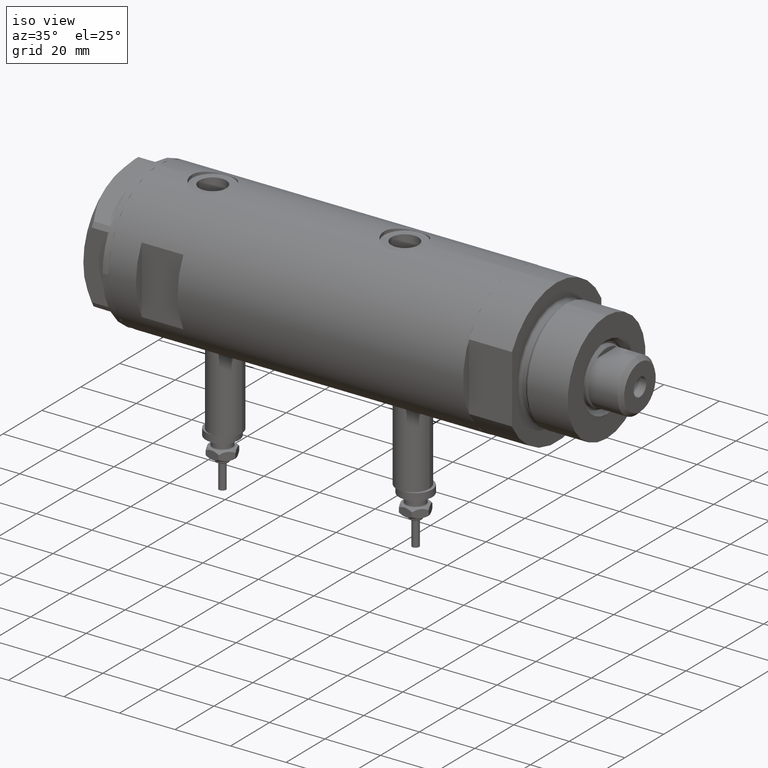
[diagram: clean part render]
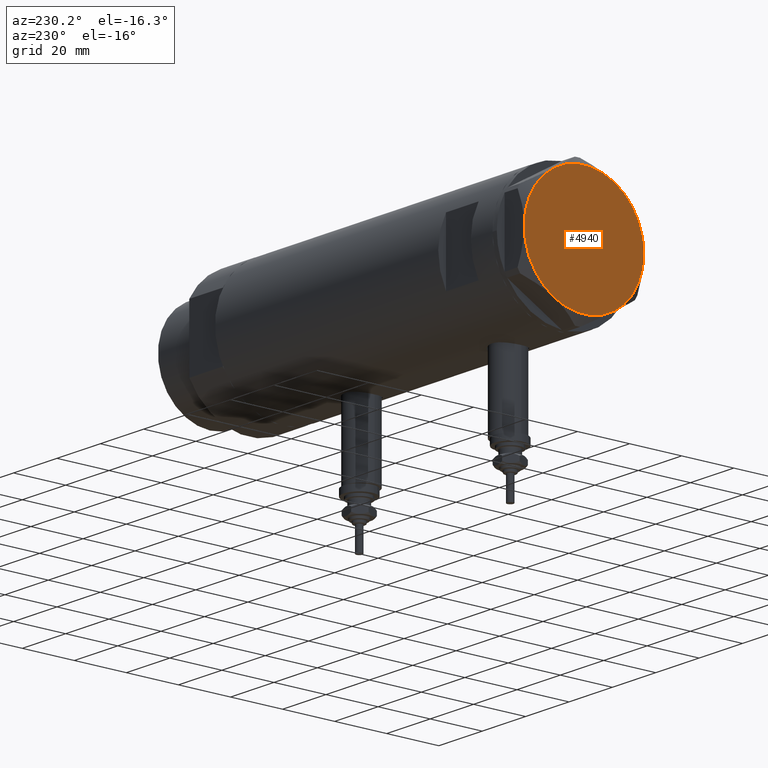
[diagram: tour spotlight — one face highlighted and labeled with its STEP entity id]
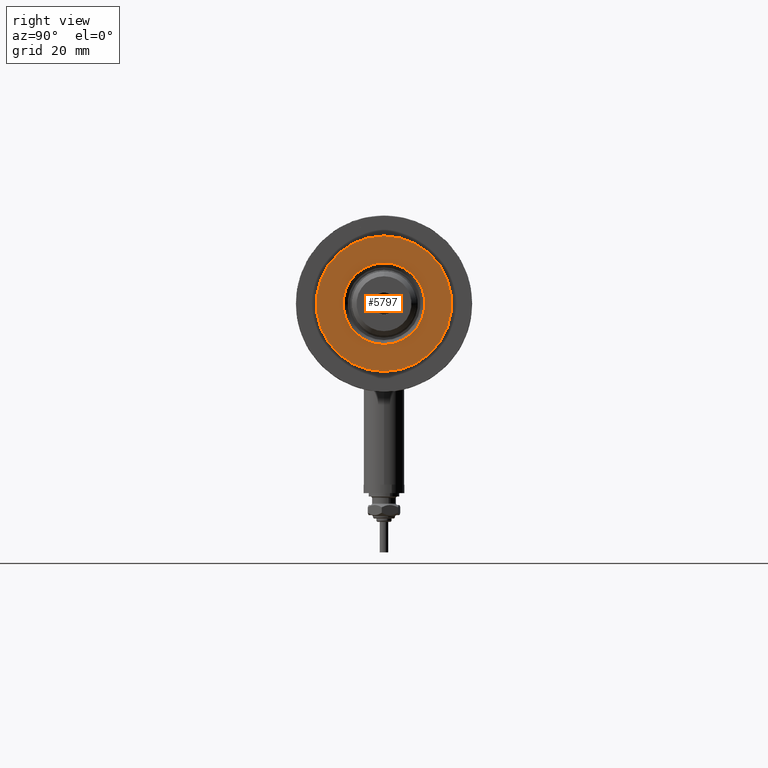
[diagram: tour spotlight — one face highlighted and labeled with its STEP entity id]
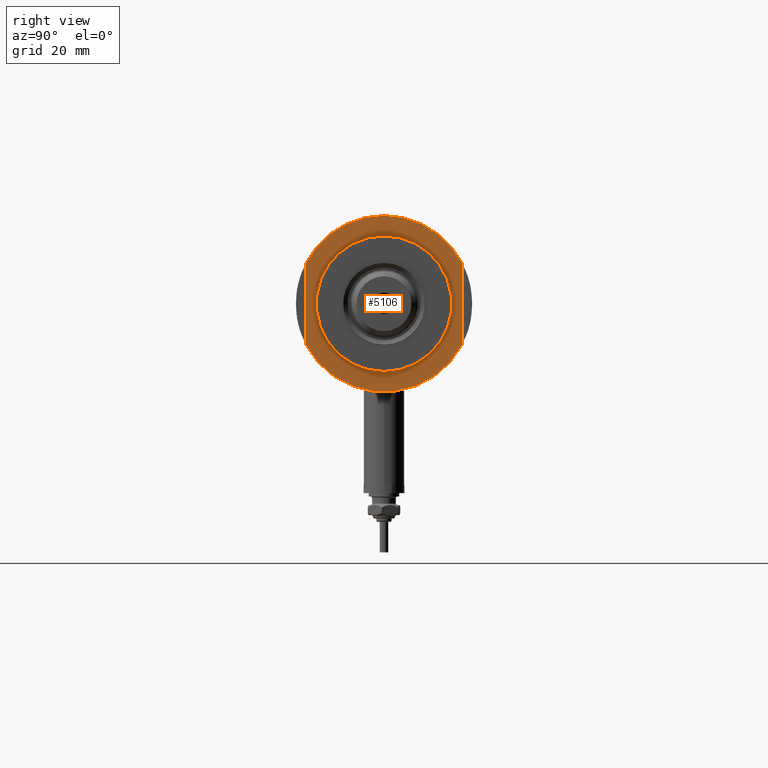
[diagram: tour spotlight — one face highlighted and labeled with its STEP entity id]
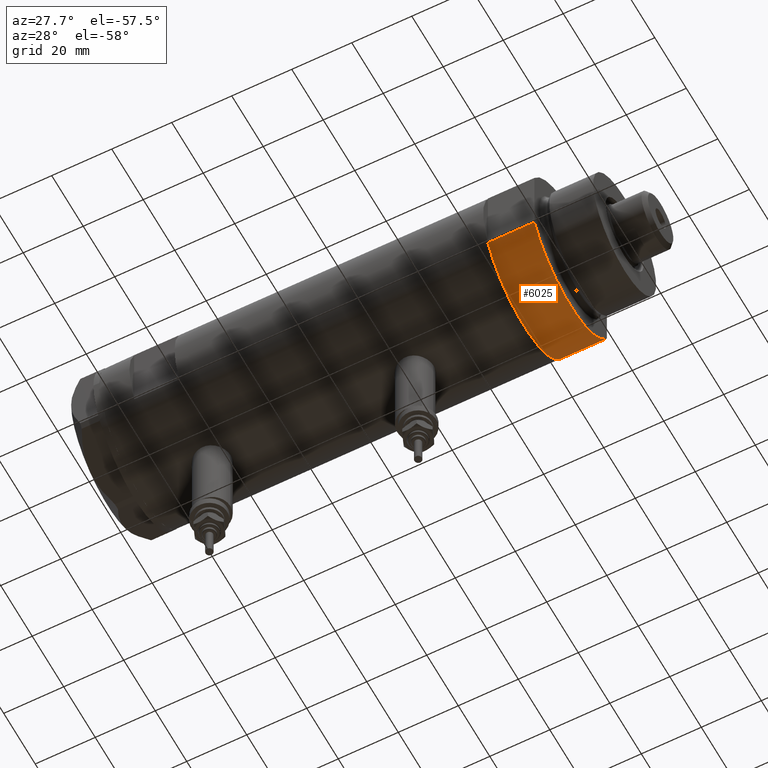
[diagram: tour spotlight — one face highlighted and labeled with its STEP entity id]
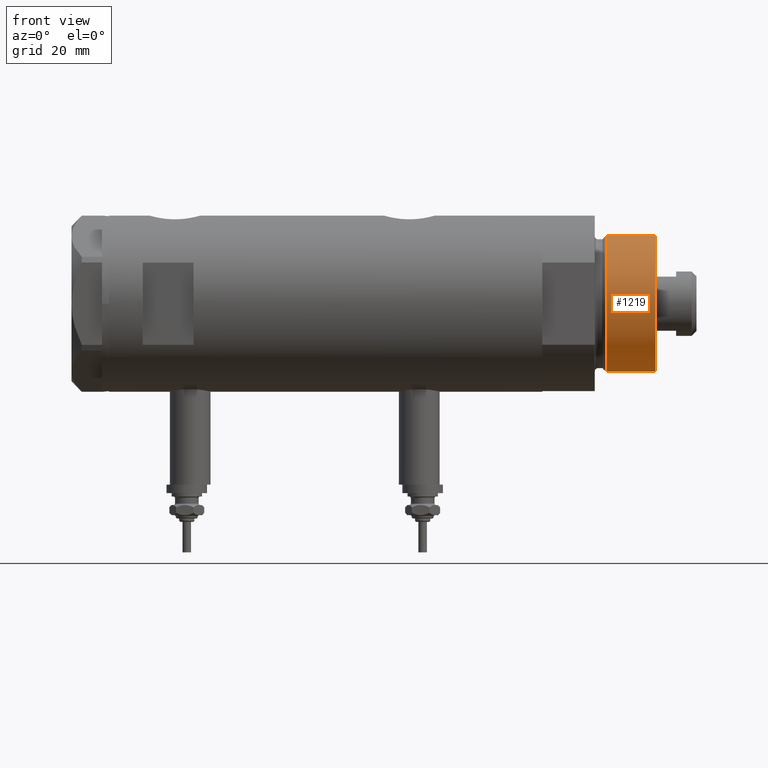
[diagram: tour spotlight — one face highlighted and labeled with its STEP entity id]
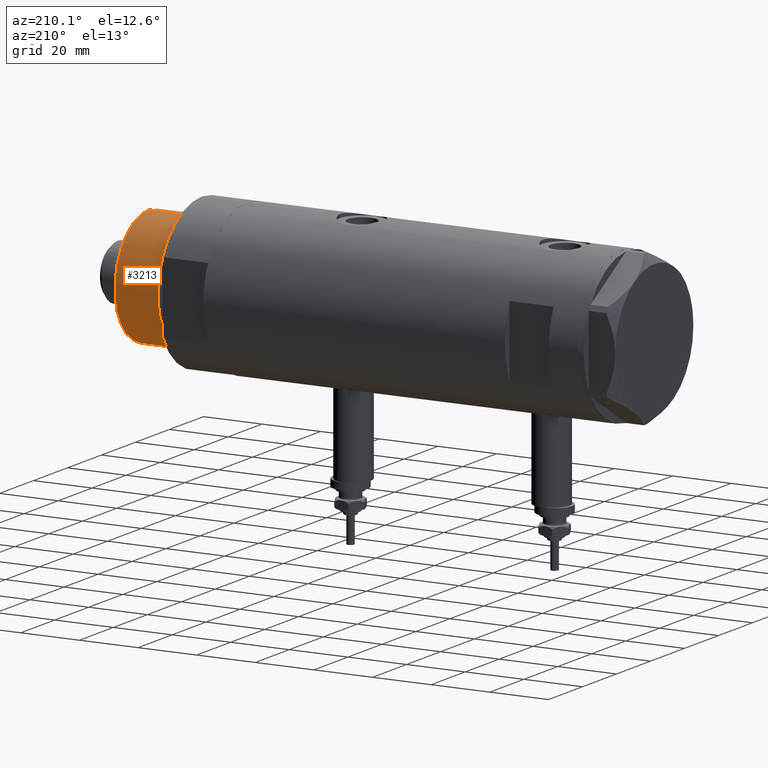
[diagram: tour spotlight — one face highlighted and labeled with its STEP entity id]
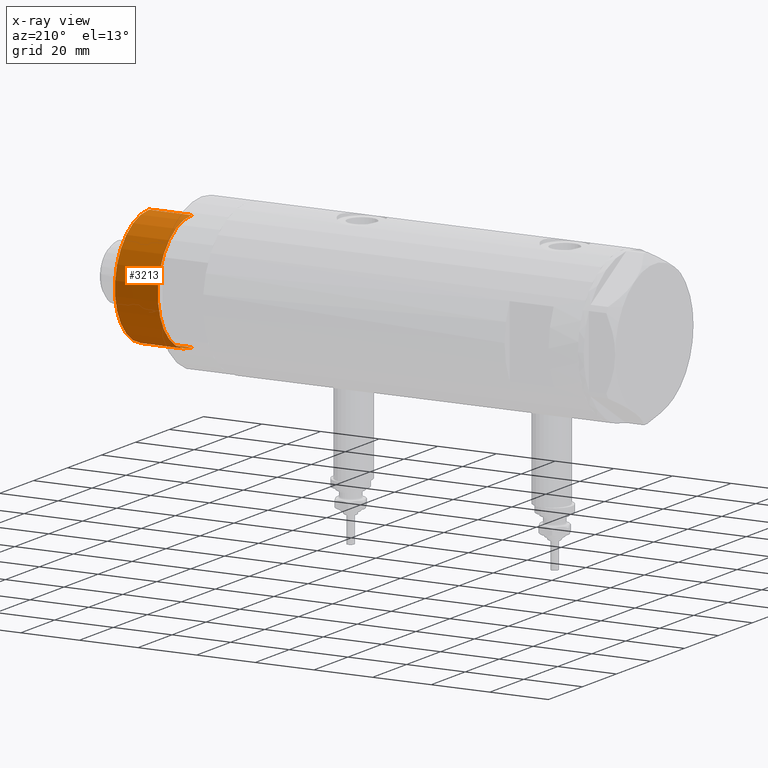
[diagram: x-ray of the same camera — body ghosted, this tour face saturated]
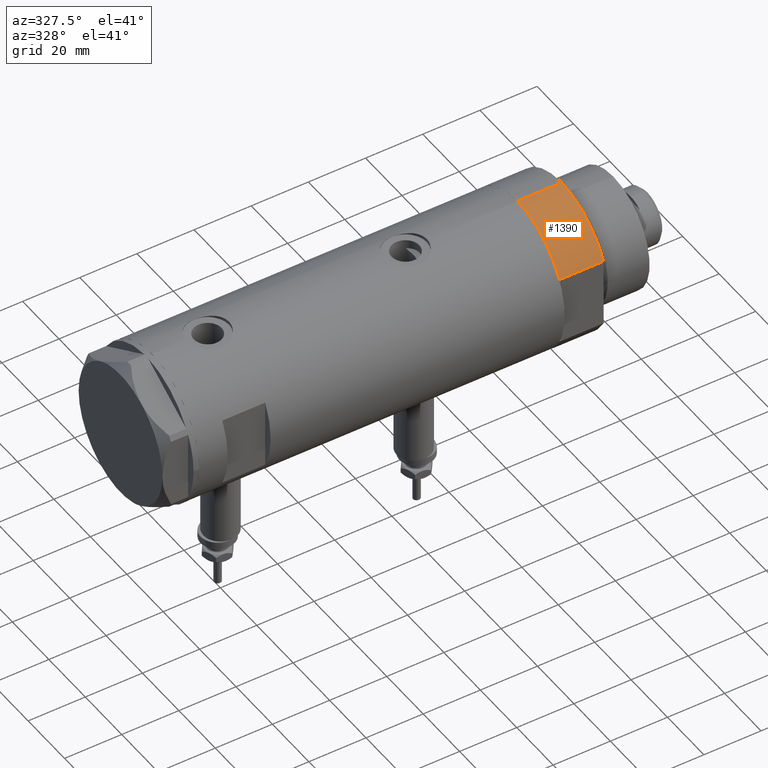
[diagram: tour spotlight — one face highlighted and labeled with its STEP entity id]
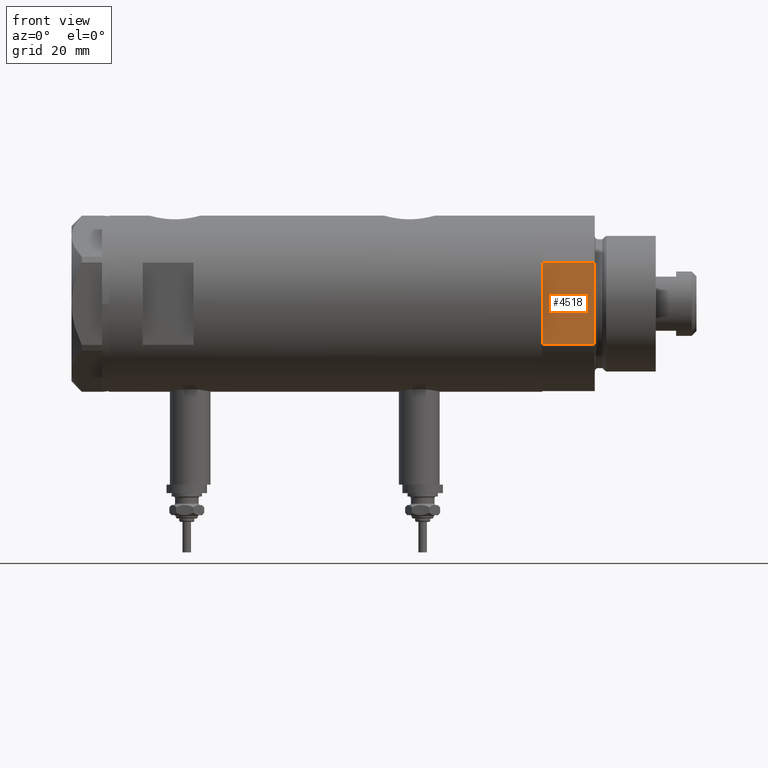
[diagram: tour spotlight — one face highlighted and labeled with its STEP entity id]
A machine part: a face-by-face anatomy tour. The part has 226 B-rep faces; the first image is the clean iso view, then the 8 largest visible faces are spotlighted one at a time (largest first), each with its STEP entity span.

Face 1 — auxiliary view, entity #4940. In plain terms, the highlighted planar face has unit normal (-1, -0, 0).
Definition (entity closure, byte-faithful):
#221 = AXIS2_PLACEMENT_3D ( 'NONE', #2735, #2113, #1118 ) ;
#471 = EDGE_CURVE ( 'NONE', #967, #3510, #5889, .T. ) ;
#510 = DIRECTION ( 'NONE',  ( 1.000000000000000000, 0.000000000000000000, -0.000000000000000000 ) ) ;
#590 = VERTEX_POINT ( 'NONE', #1179 ) ;
#937 = ORIENTED_EDGE ( 'NONE', *, *, #5559, .T. ) ;
#946 = FACE_OUTER_BOUND ( 'NONE', #2515, .T. ) ;
#967 = VERTEX_POINT ( 'NONE', #2208 ) ;
#1002 = VERTEX_POINT ( 'NONE', #3636 ) ;
#1038 = CARTESIAN_POINT ( 'NONE',  ( 0.000000000000000000, 0.000000000000000000, 9.000000000000000000 ) ) ;
#1118 = DIRECTION ( 'NONE',  ( 1.000000000000000000, 0.000000000000000000, 0.000000000000000000 ) ) ;
#1179 = CARTESIAN_POINT ( 'NONE',  ( 22.99999999999995026, 2.373657066004705010E-13, 9.000000000000000000 ) ) ;
#1199 = EDGE_CURVE ( 'NONE', #5758, #967, #4924, .T. ) ;
#1228 = AXIS2_PLACEMENT_3D ( 'NONE', #3427, #5379, #2960 ) ;
#1651 = EDGE_CURVE ( 'NONE', #1002, #5758, #5932, .T. ) ;
#1935 = DIRECTION ( 'NONE',  ( 0.000000000000000000, 0.000000000000000000, 1.000000000000000000 ) ) ;
#2097 = CARTESIAN_POINT ( 'NONE',  ( 0.000000000000000000, 0.000000000000000000, 9.000000000000000000 ) ) ;
#2113 = DIRECTION ( 'NONE',  ( 0.000000000000000000, 0.000000000000000000, 1.000000000000000000 ) ) ;
#2183 = AXIS2_PLACEMENT_3D ( 'NONE', #2097, #3501, #2616 ) ;
#2208 = CARTESIAN_POINT ( 'NONE',  ( -11.49999999999990585, -19.91858428704219364, 9.000000000000000000 ) ) ;
#2460 = DIRECTION ( 'NONE',  ( 0.000000000000000000, 0.000000000000000000, 1.000000000000000000 ) ) ;
#2512 = AXIS2_PLACEMENT_3D ( 'NONE', #5894, #3517, #4895 ) ;
#2515 = EDGE_LOOP ( 'NONE', ( #937, #6269, #5911, #3975, #5761, #6015 ) ) ;
#2593 = VERTEX_POINT ( 'NONE', #2851 ) ;
#2616 = DIRECTION ( 'NONE',  ( 1.000000000000000000, 0.000000000000000000, 0.000000000000000000 ) ) ;
#2635 = CARTESIAN_POINT ( 'NONE',  ( 11.50000000000018296, -19.91858428704203732, 9.000000000000000000 ) ) ;
#2735 = CARTESIAN_POINT ( 'NONE',  ( 0.000000000000000000, 0.000000000000000000, 9.000000000000000000 ) ) ;
#2851 = CARTESIAN_POINT ( 'NONE',  ( 11.49999999999990408, 19.91858428704219364, 9.000000000000000000 ) ) ;
#2960 = DIRECTION ( 'NONE',  ( 1.000000000000000000, 0.000000000000000000, 0.000000000000000000 ) ) ;
#2980 = EDGE_CURVE ( 'NONE', #2593, #1002, #4572, .T. ) ;
#3030 = CIRCLE ( 'NONE', #2512, 23.00000000000004619 ) ;
#3035 = DIRECTION ( 'NONE',  ( 0.000000000000000000, 0.000000000000000000, 1.000000000000000000 ) ) ;
#3427 = CARTESIAN_POINT ( 'NONE',  ( 0.000000000000000000, 0.000000000000000000, 9.000000000000000000 ) ) ;
#3436 = PLANE ( 'NONE',  #3937 ) ;
#3501 = DIRECTION ( 'NONE',  ( 0.000000000000000000, 0.000000000000000000, 1.000000000000000000 ) ) ;
#3510 = VERTEX_POINT ( 'NONE', #2635 ) ;
#3517 = DIRECTION ( 'NONE',  ( 0.000000000000000000, 0.000000000000000000, 1.000000000000000000 ) ) ;
#3636 = CARTESIAN_POINT ( 'NONE',  ( -11.50000000000004441, 19.91858428704211548, 9.000000000000000000 ) ) ;
#3937 = AXIS2_PLACEMENT_3D ( 'NONE', #1038, #1935, #510 ) ;
#3975 = ORIENTED_EDGE ( 'NONE', *, *, #1651, .T. ) ;
#4375 = EDGE_CURVE ( 'NONE', #590, #2593, #3030, .T. ) ;
#4445 = CARTESIAN_POINT ( 'NONE',  ( 0.000000000000000000, 0.000000000000000000, 9.000000000000000000 ) ) ;
#4572 = CIRCLE ( 'NONE', #4673, 23.00000000000004619 ) ;
#4673 = AXIS2_PLACEMENT_3D ( 'NONE', #5816, #2460, #4906 ) ;
#4895 = DIRECTION ( 'NONE',  ( 1.000000000000000000, 0.000000000000000000, 0.000000000000000000 ) ) ;
#4906 = DIRECTION ( 'NONE',  ( 1.000000000000000000, 0.000000000000000000, 0.000000000000000000 ) ) ;
#4924 = CIRCLE ( 'NONE', #2183, 23.00000000000004619 ) ;
#4940 = ADVANCED_FACE ( 'NONE', ( #946 ), #3436, .T. ) ;
#4983 = DIRECTION ( 'NONE',  ( 1.000000000000000000, 0.000000000000000000, 0.000000000000000000 ) ) ;
#5253 = CARTESIAN_POINT ( 'NONE',  ( -23.00000000000004619, -8.112498833180673323E-14, 9.000000000000000000 ) ) ;
#5275 = AXIS2_PLACEMENT_3D ( 'NONE', #4445, #3035, #4983 ) ;
#5379 = DIRECTION ( 'NONE',  ( 0.000000000000000000, 0.000000000000000000, 1.000000000000000000 ) ) ;
#5413 = CIRCLE ( 'NONE', #1228, 23.00000000000004619 ) ;
#5559 = EDGE_CURVE ( 'NONE', #3510, #590, #5413, .T. ) ;
#5758 = VERTEX_POINT ( 'NONE', #5253 ) ;
#5761 = ORIENTED_EDGE ( 'NONE', *, *, #1199, .T. ) ;
#5816 = CARTESIAN_POINT ( 'NONE',  ( 0.000000000000000000, 0.000000000000000000, 9.000000000000000000 ) ) ;
#5889 = CIRCLE ( 'NONE', #5275, 23.00000000000004619 ) ;
#5894 = CARTESIAN_POINT ( 'NONE',  ( 0.000000000000000000, 0.000000000000000000, 9.000000000000000000 ) ) ;
#5911 = ORIENTED_EDGE ( 'NONE', *, *, #2980, .T. ) ;
#5932 = CIRCLE ( 'NONE', #221, 23.00000000000004619 ) ;
#6015 = ORIENTED_EDGE ( 'NONE', *, *, #471, .T. ) ;
#6269 = ORIENTED_EDGE ( 'NONE', *, *, #4375, .T. ) ;

Face 2 — right view, entity #5797. In plain terms, the highlighted planar face has unit normal (1, 0, -0).
Definition (entity closure, byte-faithful):
#43 = DIRECTION ( 'NONE',  ( 1.000000000000000000, 0.000000000000000000, 0.000000000000000000 ) ) ;
#47 = VERTEX_POINT ( 'NONE', #3275 ) ;
#254 = CARTESIAN_POINT ( 'NONE',  ( 0.000000000000000000, 0.000000000000000000, 33.50000000000000000 ) ) ;
#460 = PLANE ( 'NONE',  #4297 ) ;
#508 = DIRECTION ( 'NONE',  ( 1.000000000000000000, 0.000000000000000000, 0.000000000000000000 ) ) ;
#524 = DIRECTION ( 'NONE',  ( 0.000000000000000000, 0.000000000000000000, 1.000000000000000000 ) ) ;
#699 = AXIS2_PLACEMENT_3D ( 'NONE', #5864, #524, #43 ) ;
#783 = ORIENTED_EDGE ( 'NONE', *, *, #2949, .T. ) ;
#1202 = VERTEX_POINT ( 'NONE', #3986 ) ;
#1950 = CARTESIAN_POINT ( 'NONE',  ( 0.000000000000000000, 0.000000000000000000, 33.50000000000000000 ) ) ;
#2060 = DIRECTION ( 'NONE',  ( -0.000000000000000000, -0.000000000000000000, -1.000000000000000000 ) ) ;
#2408 = VERTEX_POINT ( 'NONE', #4227 ) ;
#2856 = CARTESIAN_POINT ( 'NONE',  ( 12.05000000000000426, 0.000000000000000000, 33.50000000000000000 ) ) ;
#2949 = EDGE_CURVE ( 'NONE', #2408, #4614, #4467, .T. ) ;
#2964 = CARTESIAN_POINT ( 'NONE',  ( 0.000000000000000000, 0.000000000000000000, 33.50000000000000000 ) ) ;
#3085 = DIRECTION ( 'NONE',  ( 1.000000000000000000, 0.000000000000000000, 0.000000000000000000 ) ) ;
#3275 = CARTESIAN_POINT ( 'NONE',  ( -19.99999999999999645, 0.000000000000000000, 33.50000000000000000 ) ) ;
#3362 = EDGE_CURVE ( 'NONE', #47, #1202, #3450, .T. ) ;
#3364 = DIRECTION ( 'NONE',  ( 0.000000000000000000, 0.000000000000000000, 1.000000000000000000 ) ) ;
#3404 = DIRECTION ( 'NONE',  ( -0.000000000000000000, -0.000000000000000000, -1.000000000000000000 ) ) ;
#3421 = DIRECTION ( 'NONE',  ( 1.000000000000000000, 0.000000000000000000, -0.000000000000000000 ) ) ;
#3424 = AXIS2_PLACEMENT_3D ( 'NONE', #254, #2060, #3085 ) ;
#3450 = CIRCLE ( 'NONE', #699, 19.99999999999999645 ) ;
#3539 = CIRCLE ( 'NONE', #3643, 19.99999999999999645 ) ;
#3643 = AXIS2_PLACEMENT_3D ( 'NONE', #4361, #3364, #4836 ) ;
#3805 = ORIENTED_EDGE ( 'NONE', *, *, #4270, .T. ) ;
#3830 = ORIENTED_EDGE ( 'NONE', *, *, #5188, .T. ) ;
#3986 = CARTESIAN_POINT ( 'NONE',  ( 19.99999999999999645, 2.449293598294706119E-15, 33.50000000000000000 ) ) ;
#4227 = CARTESIAN_POINT ( 'NONE',  ( -12.05000000000000426, 1.475699392972560823E-15, 33.50000000000000000 ) ) ;
#4270 = EDGE_CURVE ( 'NONE', #1202, #47, #3539, .T. ) ;
#4297 = AXIS2_PLACEMENT_3D ( 'NONE', #1950, #6279, #3421 ) ;
#4361 = CARTESIAN_POINT ( 'NONE',  ( 0.000000000000000000, 0.000000000000000000, 33.50000000000000000 ) ) ;
#4467 = CIRCLE ( 'NONE', #5708, 12.05000000000000426 ) ;
#4527 = EDGE_LOOP ( 'NONE', ( #6323, #3805 ) ) ;
#4614 = VERTEX_POINT ( 'NONE', #2856 ) ;
#4836 = DIRECTION ( 'NONE',  ( 1.000000000000000000, 0.000000000000000000, 0.000000000000000000 ) ) ;
#5188 = EDGE_CURVE ( 'NONE', #4614, #2408, #6196, .T. ) ;
#5371 = FACE_OUTER_BOUND ( 'NONE', #4527, .T. ) ;
#5708 = AXIS2_PLACEMENT_3D ( 'NONE', #2964, #3404, #508 ) ;
#5797 = ADVANCED_FACE ( 'NONE', ( #5832, #5371 ), #460, .T. ) ;
#5832 = FACE_BOUND ( 'NONE', #6237, .T. ) ;
#5864 = CARTESIAN_POINT ( 'NONE',  ( 0.000000000000000000, 0.000000000000000000, 33.50000000000000000 ) ) ;
#6196 = CIRCLE ( 'NONE', #3424, 12.05000000000000426 ) ;
#6237 = EDGE_LOOP ( 'NONE', ( #3830, #783 ) ) ;
#6279 = DIRECTION ( 'NONE',  ( 0.000000000000000000, 0.000000000000000000, 1.000000000000000000 ) ) ;
#6323 = ORIENTED_EDGE ( 'NONE', *, *, #3362, .T. ) ;

Face 3 — right view, entity #5106. In plain terms, the highlighted planar face has unit normal (1, 0, -0).
Definition (entity closure, byte-faithful):
#4 = CARTESIAN_POINT ( 'NONE',  ( -12.12435565298215145, 23.00000000000000355, 15.50000000000000000 ) ) ;
#89 = DIRECTION ( 'NONE',  ( 0.000000000000000000, 0.000000000000000000, 1.000000000000000000 ) ) ;
#110 = CARTESIAN_POINT ( 'NONE',  ( 0.000000000000000000, 0.000000000000000000, 15.50000000000000000 ) ) ;
#122 = ORIENTED_EDGE ( 'NONE', *, *, #1052, .F. ) ;
#571 = CARTESIAN_POINT ( 'NONE',  ( 20.00000000000000000, 0.000000000000000000, 15.50000000000000000 ) ) ;
#575 = ORIENTED_EDGE ( 'NONE', *, *, #2459, .T. ) ;
#714 = CARTESIAN_POINT ( 'NONE',  ( 12.12435565298214790, 23.00000000000000355, 15.50000000000000000 ) ) ;
#732 = LINE ( 'NONE', #4221, #6036 ) ;
#755 = CIRCLE ( 'NONE', #2997, 26.00000000000000355 ) ;
#861 = VERTEX_POINT ( 'NONE', #571 ) ;
#1052 = EDGE_CURVE ( 'NONE', #1661, #3700, #732, .T. ) ;
#1115 = EDGE_CURVE ( 'NONE', #1661, #2418, #755, .T. ) ;
#1121 = CARTESIAN_POINT ( 'NONE',  ( -12.12435565298214613, 23.00000000000000355, 15.50000000000000000 ) ) ;
#1279 = ORIENTED_EDGE ( 'NONE', *, *, #4095, .T. ) ;
#1442 = CARTESIAN_POINT ( 'NONE',  ( 0.000000000000000000, 0.000000000000000000, 15.50000000000000000 ) ) ;
#1483 = VERTEX_POINT ( 'NONE', #3185 ) ;
#1610 = CIRCLE ( 'NONE', #3045, 26.00000000000000355 ) ;
#1661 = VERTEX_POINT ( 'NONE', #5153 ) ;
#1700 = DIRECTION ( 'NONE',  ( -0.000000000000000000, -0.000000000000000000, -1.000000000000000000 ) ) ;
#1849 = ORIENTED_EDGE ( 'NONE', *, *, #3461, .T. ) ;
#1946 = DIRECTION ( 'NONE',  ( 1.000000000000000000, 0.000000000000000000, 0.000000000000000000 ) ) ;
#1987 = AXIS2_PLACEMENT_3D ( 'NONE', #3469, #89, #3405 ) ;
#1993 = EDGE_CURVE ( 'NONE', #3503, #2418, #4475, .T. ) ;
#2015 = AXIS2_PLACEMENT_3D ( 'NONE', #5571, #1700, #2221 ) ;
#2048 = DIRECTION ( 'NONE',  ( -0.000000000000000000, -0.000000000000000000, -1.000000000000000000 ) ) ;
#2126 = ORIENTED_EDGE ( 'NONE', *, *, #1115, .T. ) ;
#2221 = DIRECTION ( 'NONE',  ( 1.000000000000000000, 0.000000000000000000, 0.000000000000000000 ) ) ;
#2263 = CARTESIAN_POINT ( 'NONE',  ( 0.000000000000000000, 0.000000000000000000, 15.50000000000000000 ) ) ;
#2283 = AXIS2_PLACEMENT_3D ( 'NONE', #110, #2048, #3589 ) ;
#2323 = AXIS2_PLACEMENT_3D ( 'NONE', #2263, #6164, #5164 ) ;
#2418 = VERTEX_POINT ( 'NONE', #714 ) ;
#2449 = DIRECTION ( 'NONE',  ( 1.000000000000000000, 0.000000000000000000, 0.000000000000000000 ) ) ;
#2459 = EDGE_CURVE ( 'NONE', #1483, #861, #3906, .T. ) ;
#2618 = CARTESIAN_POINT ( 'NONE',  ( -12.12435565298215323, -22.99999999999999645, 15.50000000000000000 ) ) ;
#2680 = EDGE_LOOP ( 'NONE', ( #1849, #575 ) ) ;
#2997 = AXIS2_PLACEMENT_3D ( 'NONE', #3734, #5699, #4094 ) ;
#3040 = VECTOR ( 'NONE', #1946, 1000.000000000000000 ) ;
#3045 = AXIS2_PLACEMENT_3D ( 'NONE', #1442, #4360, #2449 ) ;
#3185 = CARTESIAN_POINT ( 'NONE',  ( -20.00000000000000000, 2.449293598294706513E-15, 15.50000000000000000 ) ) ;
#3334 = CIRCLE ( 'NONE', #2323, 26.00000000000000355 ) ;
#3336 = ORIENTED_EDGE ( 'NONE', *, *, #1993, .F. ) ;
#3350 = EDGE_CURVE ( 'NONE', #4224, #3700, #1610, .T. ) ;
#3405 = DIRECTION ( 'NONE',  ( 1.000000000000000000, 0.000000000000000000, -0.000000000000000000 ) ) ;
#3461 = EDGE_CURVE ( 'NONE', #861, #1483, #3766, .T. ) ;
#3469 = CARTESIAN_POINT ( 'NONE',  ( 0.000000000000000000, 0.000000000000000000, 15.50000000000000000 ) ) ;
#3503 = VERTEX_POINT ( 'NONE', #1121 ) ;
#3589 = DIRECTION ( 'NONE',  ( 1.000000000000000000, 0.000000000000000000, 0.000000000000000000 ) ) ;
#3700 = VERTEX_POINT ( 'NONE', #2618 ) ;
#3734 = CARTESIAN_POINT ( 'NONE',  ( 0.000000000000000000, 0.000000000000000000, 15.50000000000000000 ) ) ;
#3766 = CIRCLE ( 'NONE', #2015, 20.00000000000000000 ) ;
#3906 = CIRCLE ( 'NONE', #2283, 20.00000000000000000 ) ;
#3984 = PLANE ( 'NONE',  #1987 ) ;
#4061 = EDGE_LOOP ( 'NONE', ( #122, #2126, #3336, #1279, #4562 ) ) ;
#4094 = DIRECTION ( 'NONE',  ( 1.000000000000000000, 0.000000000000000000, 0.000000000000000000 ) ) ;
#4095 = EDGE_CURVE ( 'NONE', #3503, #4224, #3334, .T. ) ;
#4221 = CARTESIAN_POINT ( 'NONE',  ( -12.12435565298215145, -22.99999999999999645, 15.50000000000000000 ) ) ;
#4224 = VERTEX_POINT ( 'NONE', #6191 ) ;
#4360 = DIRECTION ( 'NONE',  ( 0.000000000000000000, 0.000000000000000000, 1.000000000000000000 ) ) ;
#4377 = FACE_BOUND ( 'NONE', #2680, .T. ) ;
#4433 = FACE_OUTER_BOUND ( 'NONE', #4061, .T. ) ;
#4475 = LINE ( 'NONE', #4, #3040 ) ;
#4562 = ORIENTED_EDGE ( 'NONE', *, *, #3350, .T. ) ;
#5106 = ADVANCED_FACE ( 'NONE', ( #4377, #4433 ), #3984, .T. ) ;
#5153 = CARTESIAN_POINT ( 'NONE',  ( 12.12435565298215323, -22.99999999999999645, 15.50000000000000000 ) ) ;
#5164 = DIRECTION ( 'NONE',  ( 1.000000000000000000, 0.000000000000000000, 0.000000000000000000 ) ) ;
#5175 = DIRECTION ( 'NONE',  ( -1.000000000000000000, -0.000000000000000000, -0.000000000000000000 ) ) ;
#5571 = CARTESIAN_POINT ( 'NONE',  ( 0.000000000000000000, 0.000000000000000000, 15.50000000000000000 ) ) ;
#5699 = DIRECTION ( 'NONE',  ( 0.000000000000000000, 0.000000000000000000, 1.000000000000000000 ) ) ;
#6036 = VECTOR ( 'NONE', #5175, 1000.000000000000000 ) ;
#6164 = DIRECTION ( 'NONE',  ( 0.000000000000000000, 0.000000000000000000, 1.000000000000000000 ) ) ;
#6191 = CARTESIAN_POINT ( 'NONE',  ( -26.00000000000000355, 0.000000000000000000, 15.50000000000000000 ) ) ;

Face 4 — auxiliary view, entity #6025. In plain terms, the highlighted cylindrical surface (partial cylindrical patch) has radius 26 mm, axis along (-1, -0, 0).
Definition (entity closure, byte-faithful):
#133 = VECTOR ( 'NONE', #6152, 1000.000000000000000 ) ;
#213 = ORIENTED_EDGE ( 'NONE', *, *, #461, .T. ) ;
#300 = CIRCLE ( 'NONE', #3867, 26.00000000000000355 ) ;
#461 = EDGE_CURVE ( 'NONE', #3676, #2418, #5435, .T. ) ;
#509 = EDGE_CURVE ( 'NONE', #2682, #1661, #3742, .T. ) ;
#622 = ORIENTED_EDGE ( 'NONE', *, *, #2051, .T. ) ;
#714 = CARTESIAN_POINT ( 'NONE',  ( 12.12435565298214790, 23.00000000000000355, 15.50000000000000000 ) ) ;
#755 = CIRCLE ( 'NONE', #2997, 26.00000000000000355 ) ;
#1115 = EDGE_CURVE ( 'NONE', #1661, #2418, #755, .T. ) ;
#1584 = CARTESIAN_POINT ( 'NONE',  ( 12.12435565298215323, -22.99999999999999645, 0.000000000000000000 ) ) ;
#1661 = VERTEX_POINT ( 'NONE', #5153 ) ;
#1664 = DIRECTION ( 'NONE',  ( -1.000000000000000000, 0.000000000000000000, 0.000000000000000000 ) ) ;
#1760 = CARTESIAN_POINT ( 'NONE',  ( 12.12435565298215323, -22.99999999999999645, 0.000000000000000000 ) ) ;
#2051 = EDGE_CURVE ( 'NONE', #2682, #3676, #300, .T. ) ;
#2107 = DIRECTION ( 'NONE',  ( 0.000000000000000000, 0.000000000000000000, 1.000000000000000000 ) ) ;
#2319 = VECTOR ( 'NONE', #5890, 1000.000000000000000 ) ;
#2418 = VERTEX_POINT ( 'NONE', #714 ) ;
#2568 = FACE_OUTER_BOUND ( 'NONE', #5434, .T. ) ;
#2682 = VERTEX_POINT ( 'NONE', #1584 ) ;
#2997 = AXIS2_PLACEMENT_3D ( 'NONE', #3734, #5699, #4094 ) ;
#3032 = CARTESIAN_POINT ( 'NONE',  ( 0.000000000000000000, 0.000000000000000000, 0.000000000000000000 ) ) ;
#3676 = VERTEX_POINT ( 'NONE', #6007 ) ;
#3734 = CARTESIAN_POINT ( 'NONE',  ( 0.000000000000000000, 0.000000000000000000, 15.50000000000000000 ) ) ;
#3742 = LINE ( 'NONE', #1760, #133 ) ;
#3867 = AXIS2_PLACEMENT_3D ( 'NONE', #3032, #2107, #4640 ) ;
#4094 = DIRECTION ( 'NONE',  ( 1.000000000000000000, 0.000000000000000000, 0.000000000000000000 ) ) ;
#4510 = CARTESIAN_POINT ( 'NONE',  ( 0.000000000000000000, 0.000000000000000000, 15.50000000000000000 ) ) ;
#4640 = DIRECTION ( 'NONE',  ( 1.000000000000000000, 0.000000000000000000, 0.000000000000000000 ) ) ;
#4732 = ORIENTED_EDGE ( 'NONE', *, *, #1115, .F. ) ;
#5046 = CARTESIAN_POINT ( 'NONE',  ( 12.12435565298215323, 23.00000000000000355, 0.000000000000000000 ) ) ;
#5153 = CARTESIAN_POINT ( 'NONE',  ( 12.12435565298215323, -22.99999999999999645, 15.50000000000000000 ) ) ;
#5302 = ORIENTED_EDGE ( 'NONE', *, *, #509, .F. ) ;
#5313 = AXIS2_PLACEMENT_3D ( 'NONE', #4510, #6055, #1664 ) ;
#5434 = EDGE_LOOP ( 'NONE', ( #4732, #5302, #622, #213 ) ) ;
#5435 = LINE ( 'NONE', #5046, #2319 ) ;
#5568 = CYLINDRICAL_SURFACE ( 'NONE', #5313, 26.00000000000000355 ) ;
#5699 = DIRECTION ( 'NONE',  ( 0.000000000000000000, 0.000000000000000000, 1.000000000000000000 ) ) ;
#5890 = DIRECTION ( 'NONE',  ( -0.000000000000000000, -0.000000000000000000, 1.000000000000000000 ) ) ;
#6007 = CARTESIAN_POINT ( 'NONE',  ( 12.12435565298214080, 23.00000000000000355, 0.000000000000000000 ) ) ;
#6025 = ADVANCED_FACE ( 'NONE', ( #2568 ), #5568, .T. ) ;
#6055 = DIRECTION ( 'NONE',  ( -0.000000000000000000, -0.000000000000000000, -1.000000000000000000 ) ) ;
#6152 = DIRECTION ( 'NONE',  ( -0.000000000000000000, -0.000000000000000000, 1.000000000000000000 ) ) ;

Face 5 — front view, entity #1219. In plain terms, the highlighted cylindrical surface (partial cylindrical patch) has radius 20 mm, axis along (-1, -0, 0).
Definition (entity closure, byte-faithful):
#11 = VECTOR ( 'NONE', #4612, 1000.000000000000000 ) ;
#43 = DIRECTION ( 'NONE',  ( 1.000000000000000000, 0.000000000000000000, 0.000000000000000000 ) ) ;
#47 = VERTEX_POINT ( 'NONE', #3275 ) ;
#228 = DIRECTION ( 'NONE',  ( -0.000000000000000000, -0.000000000000000000, 1.000000000000000000 ) ) ;
#330 = CARTESIAN_POINT ( 'NONE',  ( -19.99999999999999645, 0.000000000000000000, 33.50000000000000000 ) ) ;
#524 = DIRECTION ( 'NONE',  ( 0.000000000000000000, 0.000000000000000000, 1.000000000000000000 ) ) ;
#699 = AXIS2_PLACEMENT_3D ( 'NONE', #5864, #524, #43 ) ;
#1151 = EDGE_CURVE ( 'NONE', #3054, #1988, #5440, .T. ) ;
#1202 = VERTEX_POINT ( 'NONE', #3986 ) ;
#1219 = ADVANCED_FACE ( 'NONE', ( #1652 ), #1683, .T. ) ;
#1558 = AXIS2_PLACEMENT_3D ( 'NONE', #5555, #5522, #5453 ) ;
#1652 = FACE_OUTER_BOUND ( 'NONE', #2559, .T. ) ;
#1683 = CYLINDRICAL_SURFACE ( 'NONE', #1558, 19.99999999999999645 ) ;
#1687 = DIRECTION ( 'NONE',  ( 1.000000000000000000, 0.000000000000000000, 0.000000000000000000 ) ) ;
#1988 = VERTEX_POINT ( 'NONE', #4947 ) ;
#2379 = DIRECTION ( 'NONE',  ( -0.000000000000000000, -0.000000000000000000, -1.000000000000000000 ) ) ;
#2393 = AXIS2_PLACEMENT_3D ( 'NONE', #4603, #228, #1687 ) ;
#2559 = EDGE_LOOP ( 'NONE', ( #5760, #4082, #5209, #5565 ) ) ;
#2715 = CARTESIAN_POINT ( 'NONE',  ( -19.99999999999999645, 0.000000000000000000, 18.87384048104053846 ) ) ;
#2769 = CARTESIAN_POINT ( 'NONE',  ( 19.99999999999999645, 2.449293598294706119E-15, 33.50000000000000000 ) ) ;
#3054 = VERTEX_POINT ( 'NONE', #2715 ) ;
#3265 = LINE ( 'NONE', #330, #11 ) ;
#3275 = CARTESIAN_POINT ( 'NONE',  ( -19.99999999999999645, 0.000000000000000000, 33.50000000000000000 ) ) ;
#3325 = LINE ( 'NONE', #2769, #3839 ) ;
#3362 = EDGE_CURVE ( 'NONE', #47, #1202, #3450, .T. ) ;
#3450 = CIRCLE ( 'NONE', #699, 19.99999999999999645 ) ;
#3839 = VECTOR ( 'NONE', #2379, 1000.000000000000000 ) ;
#3986 = CARTESIAN_POINT ( 'NONE',  ( 19.99999999999999645, 2.449293598294706119E-15, 33.50000000000000000 ) ) ;
#4082 = ORIENTED_EDGE ( 'NONE', *, *, #3362, .F. ) ;
#4603 = CARTESIAN_POINT ( 'NONE',  ( 0.000000000000000000, 0.000000000000000000, 18.87384048104053846 ) ) ;
#4612 = DIRECTION ( 'NONE',  ( -0.000000000000000000, -0.000000000000000000, -1.000000000000000000 ) ) ;
#4623 = EDGE_CURVE ( 'NONE', #1202, #1988, #3325, .T. ) ;
#4947 = CARTESIAN_POINT ( 'NONE',  ( 19.99999999999999645, 2.449293598294706119E-15, 18.87384048104053846 ) ) ;
#5209 = ORIENTED_EDGE ( 'NONE', *, *, #6088, .T. ) ;
#5440 = CIRCLE ( 'NONE', #2393, 19.99999999999999645 ) ;
#5453 = DIRECTION ( 'NONE',  ( -1.000000000000000000, 0.000000000000000000, 0.000000000000000000 ) ) ;
#5522 = DIRECTION ( 'NONE',  ( -0.000000000000000000, -0.000000000000000000, -1.000000000000000000 ) ) ;
#5555 = CARTESIAN_POINT ( 'NONE',  ( 0.000000000000000000, 0.000000000000000000, 33.50000000000000000 ) ) ;
#5565 = ORIENTED_EDGE ( 'NONE', *, *, #1151, .T. ) ;
#5760 = ORIENTED_EDGE ( 'NONE', *, *, #4623, .F. ) ;
#5864 = CARTESIAN_POINT ( 'NONE',  ( 0.000000000000000000, 0.000000000000000000, 33.50000000000000000 ) ) ;
#6088 = EDGE_CURVE ( 'NONE', #47, #3054, #3265, .T. ) ;

Face 6 — auxiliary view, entity #3213. An x-ray twin of the same camera follows (body ghosted, this face saturated) — the face is partly hidden behind the body. In plain terms, the highlighted cylindrical surface (partial cylindrical patch) has radius 20 mm, axis along (-1, -0, 0).
Definition (entity closure, byte-faithful):
#11 = VECTOR ( 'NONE', #4612, 1000.000000000000000 ) ;
#47 = VERTEX_POINT ( 'NONE', #3275 ) ;
#330 = CARTESIAN_POINT ( 'NONE',  ( -19.99999999999999645, 0.000000000000000000, 33.50000000000000000 ) ) ;
#488 = ORIENTED_EDGE ( 'NONE', *, *, #1714, .T. ) ;
#596 = EDGE_LOOP ( 'NONE', ( #5683, #1516, #488, #3211 ) ) ;
#1202 = VERTEX_POINT ( 'NONE', #3986 ) ;
#1414 = DIRECTION ( 'NONE',  ( -0.000000000000000000, -0.000000000000000000, -1.000000000000000000 ) ) ;
#1516 = ORIENTED_EDGE ( 'NONE', *, *, #4623, .T. ) ;
#1714 = EDGE_CURVE ( 'NONE', #1988, #3054, #4607, .T. ) ;
#1988 = VERTEX_POINT ( 'NONE', #4947 ) ;
#2150 = DIRECTION ( 'NONE',  ( -0.000000000000000000, -0.000000000000000000, 1.000000000000000000 ) ) ;
#2379 = DIRECTION ( 'NONE',  ( -0.000000000000000000, -0.000000000000000000, -1.000000000000000000 ) ) ;
#2715 = CARTESIAN_POINT ( 'NONE',  ( -19.99999999999999645, 0.000000000000000000, 18.87384048104053846 ) ) ;
#2769 = CARTESIAN_POINT ( 'NONE',  ( 19.99999999999999645, 2.449293598294706119E-15, 33.50000000000000000 ) ) ;
#3054 = VERTEX_POINT ( 'NONE', #2715 ) ;
#3211 = ORIENTED_EDGE ( 'NONE', *, *, #6088, .F. ) ;
#3213 = ADVANCED_FACE ( 'NONE', ( #5255 ), #4238, .T. ) ;
#3265 = LINE ( 'NONE', #330, #11 ) ;
#3275 = CARTESIAN_POINT ( 'NONE',  ( -19.99999999999999645, 0.000000000000000000, 33.50000000000000000 ) ) ;
#3302 = AXIS2_PLACEMENT_3D ( 'NONE', #3847, #1414, #5315 ) ;
#3325 = LINE ( 'NONE', #2769, #3839 ) ;
#3364 = DIRECTION ( 'NONE',  ( 0.000000000000000000, 0.000000000000000000, 1.000000000000000000 ) ) ;
#3539 = CIRCLE ( 'NONE', #3643, 19.99999999999999645 ) ;
#3643 = AXIS2_PLACEMENT_3D ( 'NONE', #4361, #3364, #4836 ) ;
#3839 = VECTOR ( 'NONE', #2379, 1000.000000000000000 ) ;
#3847 = CARTESIAN_POINT ( 'NONE',  ( 0.000000000000000000, 0.000000000000000000, 33.50000000000000000 ) ) ;
#3986 = CARTESIAN_POINT ( 'NONE',  ( 19.99999999999999645, 2.449293598294706119E-15, 33.50000000000000000 ) ) ;
#4135 = CARTESIAN_POINT ( 'NONE',  ( 0.000000000000000000, 0.000000000000000000, 18.87384048104053846 ) ) ;
#4238 = CYLINDRICAL_SURFACE ( 'NONE', #3302, 19.99999999999999645 ) ;
#4270 = EDGE_CURVE ( 'NONE', #1202, #47, #3539, .T. ) ;
#4361 = CARTESIAN_POINT ( 'NONE',  ( 0.000000000000000000, 0.000000000000000000, 33.50000000000000000 ) ) ;
#4607 = CIRCLE ( 'NONE', #6241, 19.99999999999999645 ) ;
#4612 = DIRECTION ( 'NONE',  ( -0.000000000000000000, -0.000000000000000000, -1.000000000000000000 ) ) ;
#4613 = DIRECTION ( 'NONE',  ( 1.000000000000000000, 0.000000000000000000, 0.000000000000000000 ) ) ;
#4623 = EDGE_CURVE ( 'NONE', #1202, #1988, #3325, .T. ) ;
#4836 = DIRECTION ( 'NONE',  ( 1.000000000000000000, 0.000000000000000000, 0.000000000000000000 ) ) ;
#4947 = CARTESIAN_POINT ( 'NONE',  ( 19.99999999999999645, 2.449293598294706119E-15, 18.87384048104053846 ) ) ;
#5255 = FACE_OUTER_BOUND ( 'NONE', #596, .T. ) ;
#5315 = DIRECTION ( 'NONE',  ( -1.000000000000000000, 0.000000000000000000, 0.000000000000000000 ) ) ;
#5683 = ORIENTED_EDGE ( 'NONE', *, *, #4270, .F. ) ;
#6088 = EDGE_CURVE ( 'NONE', #47, #3054, #3265, .T. ) ;
#6241 = AXIS2_PLACEMENT_3D ( 'NONE', #4135, #2150, #4613 ) ;

Face 7 — auxiliary view, entity #1390. In plain terms, the highlighted cylindrical surface (partial cylindrical patch) has radius 26 mm, axis along (-1, -0, 0).
Definition (entity closure, byte-faithful):
#184 = VECTOR ( 'NONE', #4460, 1000.000000000000000 ) ;
#291 = EDGE_CURVE ( 'NONE', #4224, #1183, #1976, .T. ) ;
#343 = VERTEX_POINT ( 'NONE', #3813 ) ;
#598 = CARTESIAN_POINT ( 'NONE',  ( -26.00000000000000355, 0.000000000000000000, 0.000000000000000000 ) ) ;
#728 = DIRECTION ( 'NONE',  ( -0.000000000000000000, -0.000000000000000000, -1.000000000000000000 ) ) ;
#751 = EDGE_LOOP ( 'NONE', ( #4403, #6087, #2713, #5214 ) ) ;
#897 = CARTESIAN_POINT ( 'NONE',  ( 0.000000000000000000, 0.000000000000000000, 0.000000000000000000 ) ) ;
#1183 = VERTEX_POINT ( 'NONE', #598 ) ;
#1301 = AXIS2_PLACEMENT_3D ( 'NONE', #2689, #728, #3699 ) ;
#1390 = ADVANCED_FACE ( 'NONE', ( #6168 ), #6143, .T. ) ;
#1442 = CARTESIAN_POINT ( 'NONE',  ( 0.000000000000000000, 0.000000000000000000, 15.50000000000000000 ) ) ;
#1581 = CIRCLE ( 'NONE', #5168, 26.00000000000000355 ) ;
#1610 = CIRCLE ( 'NONE', #3045, 26.00000000000000355 ) ;
#1976 = LINE ( 'NONE', #2828, #3529 ) ;
#2350 = DIRECTION ( 'NONE',  ( -0.000000000000000000, -0.000000000000000000, -1.000000000000000000 ) ) ;
#2449 = DIRECTION ( 'NONE',  ( 1.000000000000000000, 0.000000000000000000, 0.000000000000000000 ) ) ;
#2618 = CARTESIAN_POINT ( 'NONE',  ( -12.12435565298215323, -22.99999999999999645, 15.50000000000000000 ) ) ;
#2689 = CARTESIAN_POINT ( 'NONE',  ( 0.000000000000000000, 0.000000000000000000, 15.50000000000000000 ) ) ;
#2713 = ORIENTED_EDGE ( 'NONE', *, *, #4624, .T. ) ;
#2828 = CARTESIAN_POINT ( 'NONE',  ( -26.00000000000000355, 0.000000000000000000, 15.50000000000000000 ) ) ;
#2885 = EDGE_CURVE ( 'NONE', #343, #3700, #5844, .T. ) ;
#3045 = AXIS2_PLACEMENT_3D ( 'NONE', #1442, #4360, #2449 ) ;
#3350 = EDGE_CURVE ( 'NONE', #4224, #3700, #1610, .T. ) ;
#3435 = CARTESIAN_POINT ( 'NONE',  ( -12.12435565298215145, -22.99999999999999645, 0.000000000000000000 ) ) ;
#3529 = VECTOR ( 'NONE', #2350, 1000.000000000000000 ) ;
#3699 = DIRECTION ( 'NONE',  ( -1.000000000000000000, 0.000000000000000000, 0.000000000000000000 ) ) ;
#3700 = VERTEX_POINT ( 'NONE', #2618 ) ;
#3813 = CARTESIAN_POINT ( 'NONE',  ( -12.12435565298215501, -22.99999999999999645, 0.000000000000000000 ) ) ;
#4224 = VERTEX_POINT ( 'NONE', #6191 ) ;
#4265 = DIRECTION ( 'NONE',  ( 1.000000000000000000, 0.000000000000000000, 0.000000000000000000 ) ) ;
#4360 = DIRECTION ( 'NONE',  ( 0.000000000000000000, 0.000000000000000000, 1.000000000000000000 ) ) ;
#4403 = ORIENTED_EDGE ( 'NONE', *, *, #3350, .F. ) ;
#4460 = DIRECTION ( 'NONE',  ( -0.000000000000000000, -0.000000000000000000, 1.000000000000000000 ) ) ;
#4624 = EDGE_CURVE ( 'NONE', #1183, #343, #1581, .T. ) ;
#4740 = DIRECTION ( 'NONE',  ( 0.000000000000000000, 0.000000000000000000, 1.000000000000000000 ) ) ;
#5168 = AXIS2_PLACEMENT_3D ( 'NONE', #897, #4740, #4265 ) ;
#5214 = ORIENTED_EDGE ( 'NONE', *, *, #2885, .T. ) ;
#5844 = LINE ( 'NONE', #3435, #184 ) ;
#6087 = ORIENTED_EDGE ( 'NONE', *, *, #291, .T. ) ;
#6143 = CYLINDRICAL_SURFACE ( 'NONE', #1301, 26.00000000000000355 ) ;
#6168 = FACE_OUTER_BOUND ( 'NONE', #751, .T. ) ;
#6191 = CARTESIAN_POINT ( 'NONE',  ( -26.00000000000000355, 0.000000000000000000, 15.50000000000000000 ) ) ;

Face 8 — front view, entity #4518. In plain terms, the highlighted planar face has unit normal (-0, 1, 0).
Definition (entity closure, byte-faithful):
#133 = VECTOR ( 'NONE', #6152, 1000.000000000000000 ) ;
#164 = AXIS2_PLACEMENT_3D ( 'NONE', #6060, #2187, #5156 ) ;
#184 = VECTOR ( 'NONE', #4460, 1000.000000000000000 ) ;
#343 = VERTEX_POINT ( 'NONE', #3813 ) ;
#400 = VECTOR ( 'NONE', #3748, 1000.000000000000000 ) ;
#509 = EDGE_CURVE ( 'NONE', #2682, #1661, #3742, .T. ) ;
#732 = LINE ( 'NONE', #4221, #6036 ) ;
#1052 = EDGE_CURVE ( 'NONE', #1661, #3700, #732, .T. ) ;
#1463 = ORIENTED_EDGE ( 'NONE', *, *, #1052, .T. ) ;
#1584 = CARTESIAN_POINT ( 'NONE',  ( 12.12435565298215323, -22.99999999999999645, 0.000000000000000000 ) ) ;
#1661 = VERTEX_POINT ( 'NONE', #5153 ) ;
#1760 = CARTESIAN_POINT ( 'NONE',  ( 12.12435565298215323, -22.99999999999999645, 0.000000000000000000 ) ) ;
#2187 = DIRECTION ( 'NONE',  ( -0.000000000000000000, 1.000000000000000000, 0.000000000000000000 ) ) ;
#2618 = CARTESIAN_POINT ( 'NONE',  ( -12.12435565298215323, -22.99999999999999645, 15.50000000000000000 ) ) ;
#2682 = VERTEX_POINT ( 'NONE', #1584 ) ;
#2885 = EDGE_CURVE ( 'NONE', #343, #3700, #5844, .T. ) ;
#2941 = CARTESIAN_POINT ( 'NONE',  ( -12.12435565298215145, -22.99999999999999645, 0.000000000000000000 ) ) ;
#3101 = PLANE ( 'NONE',  #164 ) ;
#3207 = FACE_OUTER_BOUND ( 'NONE', #3834, .T. ) ;
#3435 = CARTESIAN_POINT ( 'NONE',  ( -12.12435565298215145, -22.99999999999999645, 0.000000000000000000 ) ) ;
#3580 = EDGE_CURVE ( 'NONE', #2682, #343, #3897, .T. ) ;
#3700 = VERTEX_POINT ( 'NONE', #2618 ) ;
#3742 = LINE ( 'NONE', #1760, #133 ) ;
#3748 = DIRECTION ( 'NONE',  ( -1.000000000000000000, -0.000000000000000000, -0.000000000000000000 ) ) ;
#3813 = CARTESIAN_POINT ( 'NONE',  ( -12.12435565298215501, -22.99999999999999645, 0.000000000000000000 ) ) ;
#3834 = EDGE_LOOP ( 'NONE', ( #1463, #5807, #4476, #4993 ) ) ;
#3897 = LINE ( 'NONE', #2941, #400 ) ;
#4221 = CARTESIAN_POINT ( 'NONE',  ( -12.12435565298215145, -22.99999999999999645, 15.50000000000000000 ) ) ;
#4460 = DIRECTION ( 'NONE',  ( -0.000000000000000000, -0.000000000000000000, 1.000000000000000000 ) ) ;
#4476 = ORIENTED_EDGE ( 'NONE', *, *, #3580, .F. ) ;
#4518 = ADVANCED_FACE ( 'NONE', ( #3207 ), #3101, .F. ) ;
#4993 = ORIENTED_EDGE ( 'NONE', *, *, #509, .T. ) ;
#5153 = CARTESIAN_POINT ( 'NONE',  ( 12.12435565298215323, -22.99999999999999645, 15.50000000000000000 ) ) ;
#5156 = DIRECTION ( 'NONE',  ( 0.000000000000000000, -0.000000000000000000, 1.000000000000000000 ) ) ;
#5175 = DIRECTION ( 'NONE',  ( -1.000000000000000000, -0.000000000000000000, -0.000000000000000000 ) ) ;
#5807 = ORIENTED_EDGE ( 'NONE', *, *, #2885, .F. ) ;
#5844 = LINE ( 'NONE', #3435, #184 ) ;
#6036 = VECTOR ( 'NONE', #5175, 1000.000000000000000 ) ;
#6060 = CARTESIAN_POINT ( 'NONE',  ( -12.12435565298215145, -22.99999999999999645, 0.000000000000000000 ) ) ;
#6152 = DIRECTION ( 'NONE',  ( -0.000000000000000000, -0.000000000000000000, 1.000000000000000000 ) ) ;